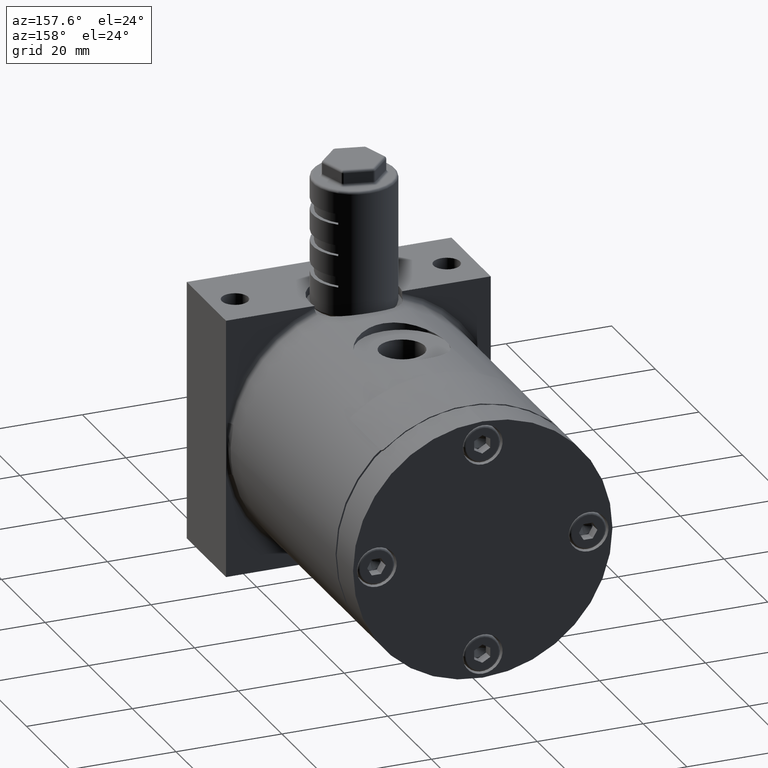
[diagram: clean part render]
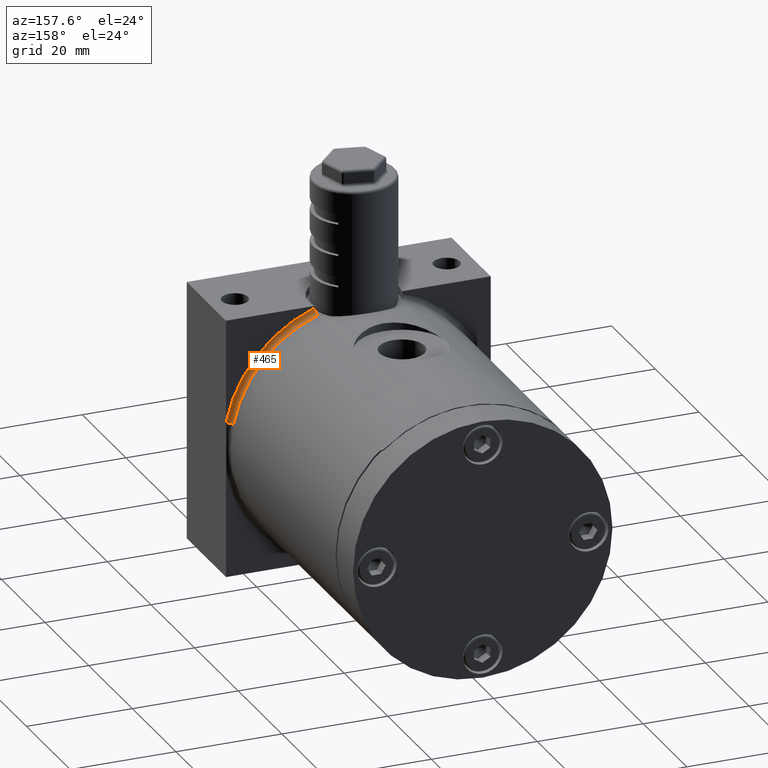
[diagram: same view with one face highlighted and labeled with its STEP entity id]
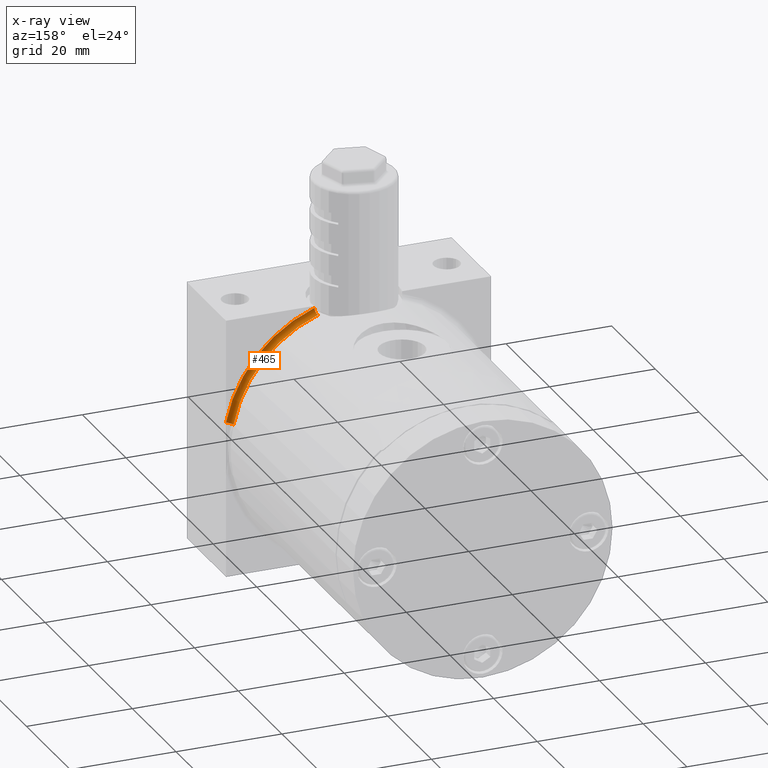
[diagram: x-ray of the same camera — body ghosted, the highlighted face saturated]
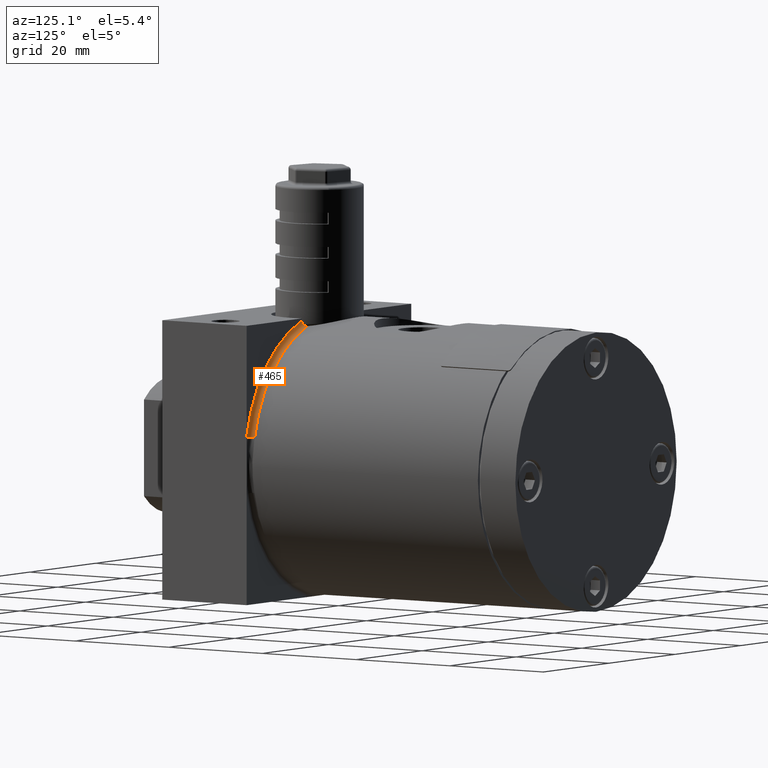
[diagram: same view with one face highlighted and labeled with its STEP entity id]
A machine part, auxiliary view. The second image highlights one B-rep face of the part: STEP entity #465.
The next image is the same camera in x-ray: the body ghosted, the highlighted face saturated — about 0% of this face is hidden behind the body in this view.
A second angle (auxiliary view) of the same face is appended — the face is thin or edge-on in the first view.
In plain terms, the highlighted toroidal blend (fillet) surface has major radius 25.5 mm and minor (blend) radius 1 mm.
Its self-contained STEP definition (entity closure, byte-faithful):
#465 = ADVANCED_FACE ( 'NONE', ( #2900 ), #8686, .F. ) ;
#700 = ORIENTED_EDGE ( 'NONE', *, *, #9642, .F. ) ;
#755 = CARTESIAN_POINT ( 'NONE',  ( 8.124569916467370600, 18.50155709568901600, 23.24416898689792900 ) ) ;
#807 = ORIENTED_EDGE ( 'NONE', *, *, #3103, .F. ) ;
#1112 = AXIS2_PLACEMENT_3D ( 'NONE', #2006, #5375, #4492 ) ;
#1308 = AXIS2_PLACEMENT_3D ( 'NONE', #3214, #1641, #2331 ) ;
#1374 = CARTESIAN_POINT ( 'NONE',  ( 8.261355820929150400, 18.00000000000000000, 24.12467616362964800 ) ) ;
#1641 = DIRECTION ( 'NONE',  ( 0.0000000000000000000, 1.000000000000000000, 0.0000000000000000000 ) ) ;
#1920 = VERTEX_POINT ( 'NONE', #7255 ) ;
#2006 = CARTESIAN_POINT ( 'NONE',  ( 0.0000000000000000000, 19.00000000000000000, 0.0000000000000000000 ) ) ;
#2331 = DIRECTION ( 'NONE',  ( 0.0000000000000000000, 0.0000000000000000000, 1.000000000000000000 ) ) ;
#2859 = VERTEX_POINT ( 'NONE', #3361 ) ;
#2900 = FACE_OUTER_BOUND ( 'NONE', #9295, .T. ) ;
#3096 = DIRECTION ( 'NONE',  ( 3.552713678800500900E-015, 0.0000000000000000000, 1.000000000000000000 ) ) ;
#3103 = EDGE_CURVE ( 'NONE', #10538, #2859, #3847, .T. ) ;
#3120 = CARTESIAN_POINT ( 'NONE',  ( 8.236903922242699800, 18.09858592078172300, 23.66988111585169100 ) ) ;
#3214 = CARTESIAN_POINT ( 'NONE',  ( 0.0000000000000000000, 19.00000000000000000, 0.0000000000000000000 ) ) ;
#3231 = CARTESIAN_POINT ( 'NONE',  ( 8.198270149339009500, 18.24516393267377600, 23.44885837504626000 ) ) ;
#3359 = ORIENTED_EDGE ( 'NONE', *, *, #9030, .T. ) ;
#3361 = CARTESIAN_POINT ( 'NONE',  ( 8.261355820929150400, 18.00000000000000000, 24.12467616362964800 ) ) ;
#3760 = VERTEX_POINT ( 'NONE', #4349 ) ;
#3847 = CIRCLE ( 'NONE', #9913, 25.50000000000000000 ) ;
#4295 = B_SPLINE_CURVE_WITH_KNOTS ( 'NONE', 3,
 ( #1374, #9796, #10629, #3120, #5816, #4916, #3231, #8271, #755, #7429, #4838, #4996 ),
 .UNSPECIFIED., .F., .F.,
 ( 4, 2, 2, 2, 2, 4 ),
 ( 0.0000000000000000000, 0.0004004929308137814300, 0.0006007393962206675900, 0.0008009858616275538500, 0.001201478792441327100, 0.001601971723255100600 ),
 .UNSPECIFIED. ) ;
#4349 = CARTESIAN_POINT ( 'NONE',  ( 7.952986860293441000, 19.00000000000000000, 23.17326045251294900 ) ) ;
#4492 = DIRECTION ( 'NONE',  ( 0.0000000000000000000, 0.0000000000000000000, 1.000000000000000000 ) ) ;
#4661 = DIRECTION ( 'NONE',  ( -0.0000000000000000000, -1.000000000000000000, -0.0000000000000000000 ) ) ;
#4796 = CIRCLE ( 'NONE', #1112, 24.50000000000000000 ) ;
#4838 = CARTESIAN_POINT ( 'NONE',  ( 8.000414133962980400, 18.87427050522885400, 23.15698356799396900 ) ) ;
#4916 = CARTESIAN_POINT ( 'NONE',  ( 8.209869966112942000, 18.20214945834095800, 23.50074654305862900 ) ) ;
#4968 = EDGE_CURVE ( 'NONE', #2859, #3760, #4295, .T. ) ;
#4996 = CARTESIAN_POINT ( 'NONE',  ( 7.952986860293441000, 19.00000000000000000, 23.17326045251294900 ) ) ;
#5375 = DIRECTION ( 'NONE',  ( 0.0000000000000000000, 1.000000000000000000, 0.0000000000000000000 ) ) ;
#5689 = DIRECTION ( 'NONE',  ( 0.1970563847278610500, 7.537875461356501900E-016, -0.9803921568627451700 ) ) ;
#5735 = DIRECTION ( 'NONE',  ( 0.9803921568627450600, 0.0000000000000000000, 0.1970563847278608300 ) ) ;
#5816 = CARTESIAN_POINT ( 'NONE',  ( 8.229119488506240600, 18.12908889932791500, 23.61116732160730100 ) ) ;
#6129 = AXIS2_PLACEMENT_3D ( 'NONE', #9105, #5689, #5735 ) ;
#6479 = CARTESIAN_POINT ( 'NONE',  ( 0.0000000000000000000, 18.00000000000000000, 0.0000000000000000000 ) ) ;
#6630 = ORIENTED_EDGE ( 'NONE', *, *, #4968, .F. ) ;
#7255 = CARTESIAN_POINT ( 'NONE',  ( 24.01960784313724800, 19.00000000000000000, 4.827881425832589300 ) ) ;
#7429 = CARTESIAN_POINT ( 'NONE',  ( 8.045460608328408400, 18.74535750502455000, 23.16679443191127800 ) ) ;
#8271 = CARTESIAN_POINT ( 'NONE',  ( 8.158680587343900100, 18.38652659280942100, 23.31268748959071500 ) ) ;
#8686 = TOROIDAL_SURFACE ( 'NONE', #1308, 25.50000000000000000, 1.000000000000000000 ) ;
#9030 = EDGE_CURVE ( 'NONE', #10538, #1920, #9161, .T. ) ;
#9105 = CARTESIAN_POINT ( 'NONE',  ( 25.00000000000000000, 19.00000000000000000, 5.024937810560450300 ) ) ;
#9161 = CIRCLE ( 'NONE', #6129, 1.000000000000000000 ) ;
#9295 = EDGE_LOOP ( 'NONE', ( #6630, #807, #3359, #700 ) ) ;
#9642 = EDGE_CURVE ( 'NONE', #3760, #1920, #4796, .T. ) ;
#9796 = CARTESIAN_POINT ( 'NONE',  ( 8.261355820929150400, 17.99999999999999600, 23.98940349582777300 ) ) ;
#9819 = CARTESIAN_POINT ( 'NONE',  ( 25.00000000000000000, 18.00000000000000000, 5.024937810560450300 ) ) ;
#9913 = AXIS2_PLACEMENT_3D ( 'NONE', #6479, #4661, #3096 ) ;
#10538 = VERTEX_POINT ( 'NONE', #9819 ) ;
#10629 = CARTESIAN_POINT ( 'NONE',  ( 8.255552190466803000, 18.02446397723290200, 23.85604444105547700 ) ) ;